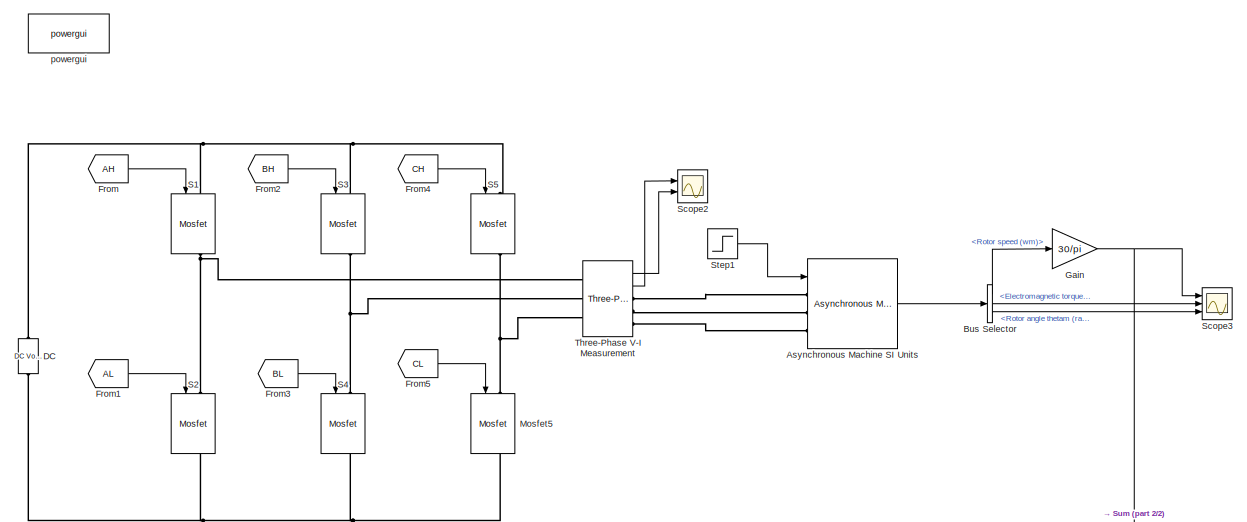
[diagram: root canvas - part 1/2, middle right region]
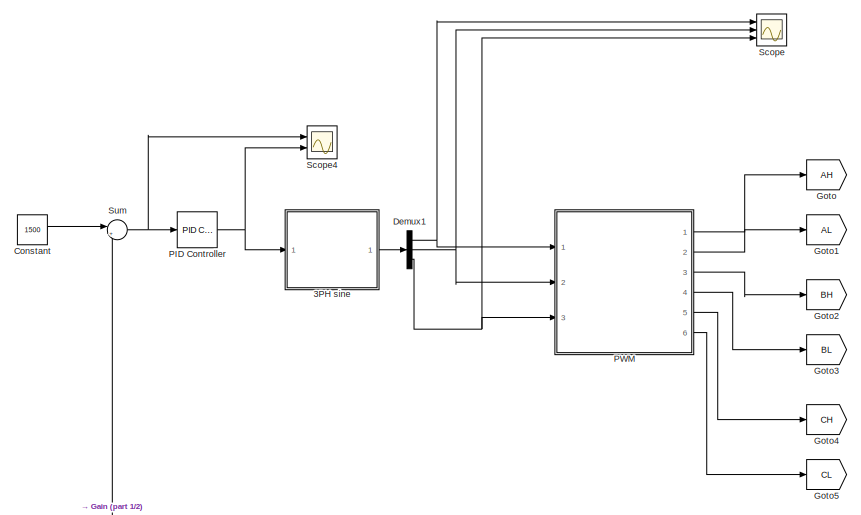
[diagram: root canvas - part 2/2, middle left region]
MODEL slx_e94ef08a38a6
KIND model
CONFIG AbsTol = auto
CONFIG EnableMultiTasking = off
CONFIG FixedStep = 1e-6
CONFIG MaxStep = auto
CONFIG MinStep = auto
CONFIG RelTol = 1e-3
CONFIG SampleTimeConstraint = Unconstrained
CONFIG Solver = ode23t
CONFIG SolverName = ode23t
CONFIG StartTime = 0.0
CONFIG StopTime = 10
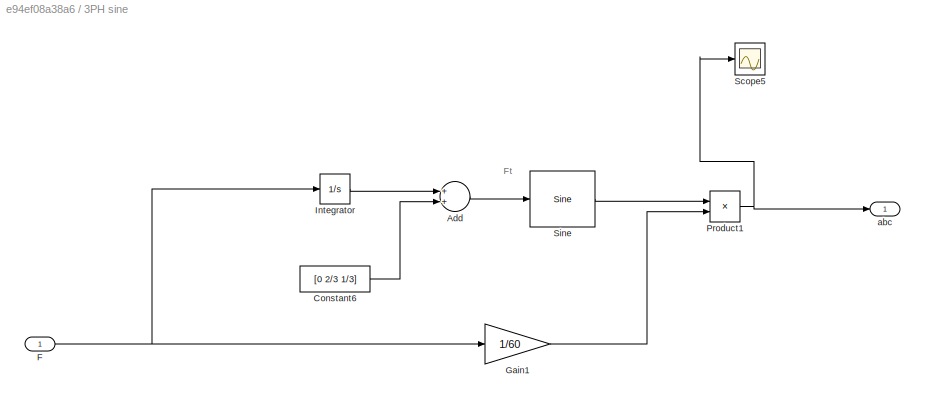
BLOCK [SubSystem] 3PH sine
  Ports = [1, 1]
  RequestExecContextInheritance = off
  Variant = off
BLOCK [Sum] 3PH sine/Add
  InputSameDT = off
  OutDataTypeStr = Inherit: Inherit via internal rule
  Ports = [2, 1]
  SaturateOnIntegerOverflow = off
BLOCK [Constant] 3PH sine/Constant6
  Value = [0 2/3 1/3]
BLOCK [Inport] 3PH sine/F
  IconDisplay = Port number
BLOCK [Gain] 3PH sine/Gain1
  Gain = 1/60
  OutDataTypeStr = Inherit: Inherit via internal rule
  ParamDataTypeStr = Inherit: Inherit via internal rule
  SaturateOnIntegerOverflow = off
BLOCK [Integrator] 3PH sine/Integrator
  Ports = [1, 1]
BLOCK [Product] 3PH sine/Product1
  InputSameDT = off
  OutDataTypeStr = Inherit: Inherit via internal rule
  Ports = [2, 1]
  RndMeth = Floor
  SaturateOnIntegerOverflow = off
BLOCK [Scope] 3PH sine/Scope5
  NumInputPorts = 1
  Ports = [1]
  ScopeSpecificationString = C++SS(StrPVP('Open','off'),StrPVP('TimeRange','auto'),StrPVP('TickLabels','OneTimeTick'),StrPVP('ShowLegends','off'),StrPVP('LimitDataPoints','off'),StrPVP('MaxDataPoints','5000'),StrPVP('SaveToWorkspace','off'),StrPVP('SaveName','ScopeData5'),StrPVP('YMin','-0.83333'),StrPVP('YMax','0.83333'),StrPVP('BlockParamSampleInput','off'),StrPVP('BlockParamSampleTime','-1'),StrPVP('ZoomMode','on'),StrPVP(...<+591ch>
BLOCK [Reference] 3PH sine/Sine  REF=simulink/Lookup
Tables/Sine
  Ports = [1, 1]
  SourceBlock = simulink/Lookup\nTables/Sine
  SourceProductBaseCode = SL
  SourceProductName = Simulink
  SourceType = Sine and Cosine
BLOCK [Outport] 3PH sine/abc
  IconDisplay = Port number
BLOCK [Reference] Asynchronous Machine SI Units  REF=powerlib/Machines/Asynchronous Machine
SI Units
  Ports = [1, 1, 0, 0, 0, 3]
  SourceBlock = powerlib/Machines/Asynchronous Machine\nSI Units
  SourceProductBaseCode = PS
  SourceProductName = Simscape Power Systems
  SourceType = Asynchronous Machine
BLOCK [BusSelector] Bus Selector
  OutputAsBus = off
  OutputSignals = Mechanical.Rotor speed (wm),Mechanical.Electromagnetic torque Te (N*m),Mechanical.Rotor angle thetam (rad)
  Ports = [1, 3]
BLOCK [Constant] Constant
  Value = 1500
BLOCK [Reference] DC  REF=powerlib/Electrical
Sources/DC Voltage Source
  Ports = [0, 0, 0, 0, 0, 1, 1]
  SourceBlock = powerlib/Electrical\nSources/DC Voltage Source
  SourceProductBaseCode = PS
  SourceProductName = Simscape Power Systems
  SourceType = DC Voltage Source
BLOCK [Demux] Demux1
  DisplayOption = bar
  Outputs = 3
  Ports = [1, 3]
BLOCK [From] From
  GotoTag = AH
BLOCK [From] From1
  GotoTag = AL
BLOCK [From] From2
  GotoTag = BH
BLOCK [From] From3
  GotoTag = BL
BLOCK [From] From4
  GotoTag = CH
BLOCK [From] From5
  GotoTag = CL
BLOCK [Gain] Gain
  Gain = 30/pi
  OutDataTypeStr = Inherit: Inherit via internal rule
  ParamDataTypeStr = Inherit: Inherit via internal rule
  SaturateOnIntegerOverflow = off
BLOCK [Goto] Goto
  GotoTag = AH
BLOCK [Goto] Goto1
  GotoTag = AL
BLOCK [Goto] Goto2
  GotoTag = BH
BLOCK [Goto] Goto3
  GotoTag = BL
BLOCK [Goto] Goto4
  GotoTag = CH
BLOCK [Goto] Goto5
  GotoTag = CL
BLOCK [Reference] Mosfet5  REF=powerlib/Power
Electronics/Mosfet
  Ports = [1, 1, 0, 0, 0, 1, 1]
  SourceBlock = powerlib/Power\nElectronics/Mosfet
  SourceProductBaseCode = PS
  SourceProductName = Simscape Power Systems
  SourceType = Mosfet
BLOCK [Reference] PID Controller  REF=simulink/Continuous/PID Controller
  Ports = [1, 1]
  SourceBlock = simulink/Continuous/PID Controller
  SourceProductBaseCode = SL
  SourceProductName = Simulink
  SourceType = PID 1dof
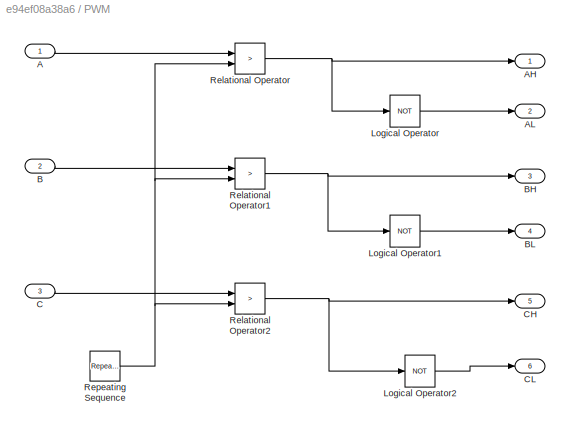
BLOCK [SubSystem] PWM
  Ports = [3, 6]
  RequestExecContextInheritance = off
  Variant = off
BLOCK [Inport] PWM/A
  IconDisplay = Port number
BLOCK [Outport] PWM/AH
  IconDisplay = Port number
BLOCK [Outport] PWM/AL
  IconDisplay = Port number
  Port = 2
BLOCK [Inport] PWM/B
  IconDisplay = Port number
  Port = 2
BLOCK [Outport] PWM/BH
  IconDisplay = Port number
  Port = 3
BLOCK [Outport] PWM/BL
  IconDisplay = Port number
  Port = 4
BLOCK [Inport] PWM/C
  IconDisplay = Port number
  Port = 3
BLOCK [Outport] PWM/CH
  IconDisplay = Port number
  Port = 5
BLOCK [Outport] PWM/CL
  IconDisplay = Port number
  Port = 6
BLOCK [Logic] PWM/Logical Operator
  AllPortsSameDT = off
  IconShape = distinctive
  Operator = NOT
  OutDataTypeStr = boolean
  Ports = [1, 1]
BLOCK [Logic] PWM/Logical Operator1
  AllPortsSameDT = off
  IconShape = distinctive
  Operator = NOT
  OutDataTypeStr = boolean
  Ports = [1, 1]
BLOCK [Logic] PWM/Logical Operator2
  AllPortsSameDT = off
  IconShape = distinctive
  Operator = NOT
  OutDataTypeStr = boolean
  Ports = [1, 1]
BLOCK [RelationalOperator] PWM/Relational Operator
  InputSameDT = off
  Operator = >
  OutDataTypeStr = boolean
  Ports = [2, 1]
BLOCK [RelationalOperator] PWM/Relational Operator1
  InputSameDT = off
  Operator = >
  OutDataTypeStr = boolean
  Ports = [2, 1]
BLOCK [RelationalOperator] PWM/Relational Operator2
  InputSameDT = off
  Operator = >
  OutDataTypeStr = boolean
  Ports = [2, 1]
BLOCK [Reference] PWM/Repeating Sequence  REF=simulink/Sources/Repeating
Sequence
  Ports = [0, 1]
  SourceBlock = simulink/Sources/Repeating\nSequence
  SourceProductBaseCode = SL
  SourceProductName = Simulink
  SourceType = Repeating table
BLOCK [Reference] S1  REF=powerlib/Power
Electronics/Mosfet
  Ports = [1, 1, 0, 0, 0, 1, 1]
  SourceBlock = powerlib/Power\nElectronics/Mosfet
  SourceProductBaseCode = PS
  SourceProductName = Simscape Power Systems
  SourceType = Mosfet
BLOCK [Reference] S2  REF=powerlib/Power
Electronics/Mosfet
  Ports = [1, 1, 0, 0, 0, 1, 1]
  SourceBlock = powerlib/Power\nElectronics/Mosfet
  SourceProductBaseCode = PS
  SourceProductName = Simscape Power Systems
  SourceType = Mosfet
BLOCK [Reference] S3  REF=powerlib/Power
Electronics/Mosfet
  Ports = [1, 1, 0, 0, 0, 1, 1]
  SourceBlock = powerlib/Power\nElectronics/Mosfet
  SourceProductBaseCode = PS
  SourceProductName = Simscape Power Systems
  SourceType = Mosfet
BLOCK [Reference] S4  REF=powerlib/Power
Electronics/Mosfet
  Ports = [1, 1, 0, 0, 0, 1, 1]
  SourceBlock = powerlib/Power\nElectronics/Mosfet
  SourceProductBaseCode = PS
  SourceProductName = Simscape Power Systems
  SourceType = Mosfet
BLOCK [Reference] S5  REF=powerlib/Power
Electronics/Mosfet
  Ports = [1, 1, 0, 0, 0, 1, 1]
  SourceBlock = powerlib/Power\nElectronics/Mosfet
  SourceProductBaseCode = PS
  SourceProductName = Simscape Power Systems
  SourceType = Mosfet
BLOCK [Scope] Scope
  NumInputPorts = 3
  Ports = [3]
  ScopeSpecificationString = C++SS(StrPVP('Open','off'),StrPVP('TimeRange','auto'),StrPVP('TickLabels','OneTimeTick'),StrPVP('ShowLegends','off'),StrPVP('LimitDataPoints','off'),StrPVP('MaxDataPoints','5000'),StrPVP('SaveToWorkspace','off'),StrPVP('SaveName','ScopeData'),StrPVP('YMin','-0.625~-5~-5'),StrPVP('YMax','0.625~5~5'),StrPVP('BlockParamSampleInput','off'),StrPVP('BlockParamSampleTime','-1'),StrPVP('ZoomMode','on'),St...<+669ch>
BLOCK [Scope] Scope2
  NumInputPorts = 2
  Ports = [2]
  ScopeSpecificationString = Simulink.scopes.TimeScopeBlockCfg('CurrentConfiguration', extmgr.ConfigurationSet(extmgr.Configuration('Core','General UI',true,'FigureColor',[0.156862745098039 0.156862745098039 0.156862745098039]),extmgr.Configuration('Core','Source UI',true),extmgr.Configuration('Sources','WiredSimulink',true,'DataLoggingVariableName','ScopeData2','DataLoggingSaveFormat','StructureWithTime','DataLoggingDecimati...<+4568ch>
BLOCK [Scope] Scope3
  NumInputPorts = 3
  Ports = [3]
  ScopeSpecificationString = C++SS(StrPVP('Open','off'),StrPVP('TimeRange','auto'),StrPVP('TickLabels','OneTimeTick'),StrPVP('ShowLegends','on'),StrPVP('LimitDataPoints','off'),StrPVP('MaxDataPoints','5000'),StrPVP('SaveToWorkspace','off'),StrPVP('SaveName','ScopeData3'),StrPVP('YMin','28.06895~-42.91553~-172.92902'),StrPVP('YMax','1996.88123~42.28039~1556.36121'),StrPVP('BlockParamSampleInput','off'),StrPVP('BlockParamSample...<+889ch>
BLOCK [Scope] Scope4
  NumInputPorts = 2
  Ports = [2]
  ScopeSpecificationString = C++SS(StrPVP('Open','off'),StrPVP('TimeRange','auto'),StrPVP('TickLabels','OneTimeTick'),StrPVP('ShowLegends','off'),StrPVP('LimitDataPoints','off'),StrPVP('MaxDataPoints','5000'),StrPVP('SaveToWorkspace','off'),StrPVP('SaveName','ScopeData1'),StrPVP('YMin','-1021.49146~-12.87624'),StrPVP('YMax','1193.4231~35.88494'),StrPVP('BlockParamSampleInput','off'),StrPVP('BlockParamSampleTime','-1'),StrPVP(...<+841ch>
BLOCK [Step] Step1
  After = 10
  Before = 5
  SampleTime = 0
  Time = 5
BLOCK [Sum] Sum
  IconShape = round
  InputSameDT = off
  Inputs = |+-
  OutDataTypeStr = Inherit: Inherit via internal rule
  Ports = [2, 1]
  SaturateOnIntegerOverflow = off
BLOCK [Reference] Three-Phase V-I Measurement  REF=powerlib/Measurements/Three-Phase
V-I Measurement
  Ports = [0, 2, 0, 0, 0, 3, 3]
  SourceBlock = powerlib/Measurements/Three-Phase\nV-I Measurement
  SourceProductBaseCode = PS
  SourceProductName = Simscape Power Systems
  SourceType = Three-Phase VI Measurement
BLOCK [Reference] powergui  REF=powerlib/powergui
  Ports = []
  Priority = 1
  SourceBlock = powerlib/powergui
  SourceProductBaseCode = PS
  SourceProductName = Simscape Power Systems
  SourceType = PSB option menu block
ANNOTATION 3PH sine: Ft
LINE 3PH sine/Add:1 -> 3PH sine/Sine:1
LINE 3PH sine/Constant6:1 -> 3PH sine/Add:2
NET 3PH sine/F:1 -> 3PH sine/Gain1:1, 3PH sine/Integrator:1
LINE 3PH sine/Gain1:1 -> 3PH sine/Product1:2
LINE 3PH sine/Integrator:1 -> 3PH sine/Add:1
NET 3PH sine/Product1:1 -> 3PH sine/Scope5:1, 3PH sine/abc:1
LINE 3PH sine/Sine:1 -> 3PH sine/Product1:1
LINE 3PH sine:1 -> Demux1:1
LINE Asynchronous Machine SI Units:1 -> Bus Selector:1
LINE Bus Selector:1 -> Gain:1
LINE Bus Selector:2 -> Scope3:2
LINE Bus Selector:3 -> Scope3:3
LINE Constant:1 -> Sum:1
NET Demux1:1 -> PWM:1, Scope:1
NET Demux1:2 -> PWM:2, Scope:2
NET Demux1:3 -> PWM:3, Scope:3
LINE From1:1 -> S2:1
LINE From2:1 -> S3:1
LINE From3:1 -> S4:1
LINE From4:1 -> S5:1
LINE From5:1 -> Mosfet5:1
LINE From:1 -> S1:1
NET Gain:1 -> Scope3:1, Sum:2
NET PID Controller:1 -> 3PH sine:1, Scope4:2
LINE PWM/A:1 -> PWM/Relational Operator:1
LINE PWM/B:1 -> PWM/Relational Operator1:1
LINE PWM/C:1 -> PWM/Relational Operator2:1
LINE PWM/Logical Operator1:1 -> PWM/BL:1
LINE PWM/Logical Operator2:1 -> PWM/CL:1
LINE PWM/Logical Operator:1 -> PWM/AL:1
NET PWM/Relational Operator1:1 -> PWM/BH:1, PWM/Logical Operator1:1
NET PWM/Relational Operator2:1 -> PWM/CH:1, PWM/Logical Operator2:1
NET PWM/Relational Operator:1 -> PWM/AH:1, PWM/Logical Operator:1
NET PWM/Repeating Sequence:1 -> PWM/Relational Operator1:2, PWM/Relational Operator2:2, PWM/Relational Operator:2
LINE PWM:1 -> Goto:1
LINE PWM:2 -> Goto1:1
LINE PWM:3 -> Goto2:1
LINE PWM:4 -> Goto3:1
LINE PWM:5 -> Goto4:1
LINE PWM:6 -> Goto5:1
LINE Step1:1 -> Asynchronous Machine SI Units:1
NET Sum:1 -> PID Controller:1, Scope4:1
LINE Three-Phase V-I Measurement:1 -> Scope2:2
LINE Three-Phase V-I Measurement:2 -> Scope2:1
PLINE Asynchronous Machine SI Units:LConn1 -- Three-Phase V-I Measurement:RConn1
PLINE Asynchronous Machine SI Units:LConn2 -- Three-Phase V-I Measurement:RConn2
PLINE Asynchronous Machine SI Units:LConn3 -- Three-Phase V-I Measurement:RConn3
PNET net1: DC:LConn1 -- Mosfet5:RConn1 -- S2:RConn1 -- S4:RConn1
PNET net2: DC:RConn1 -- S1:LConn1 -- S3:LConn1 -- S5:LConn1
PNET net3: Mosfet5:LConn1 -- S5:RConn1 -- Three-Phase V-I Measurement:LConn3
PNET net4: S1:RConn1 -- S2:LConn1 -- Three-Phase V-I Measurement:LConn1
PNET net5: S3:RConn1 -- S4:LConn1 -- Three-Phase V-I Measurement:LConn2
note: NET lines group one-source signal fan-out (src -> all destinations, sorted); 1:1 wires keep LINE; PNET lines group multi-terminal physical nets as a canonical sorted terminal list (undirected conserving connections); 2-terminal nets keep the pairwise PLINE form
